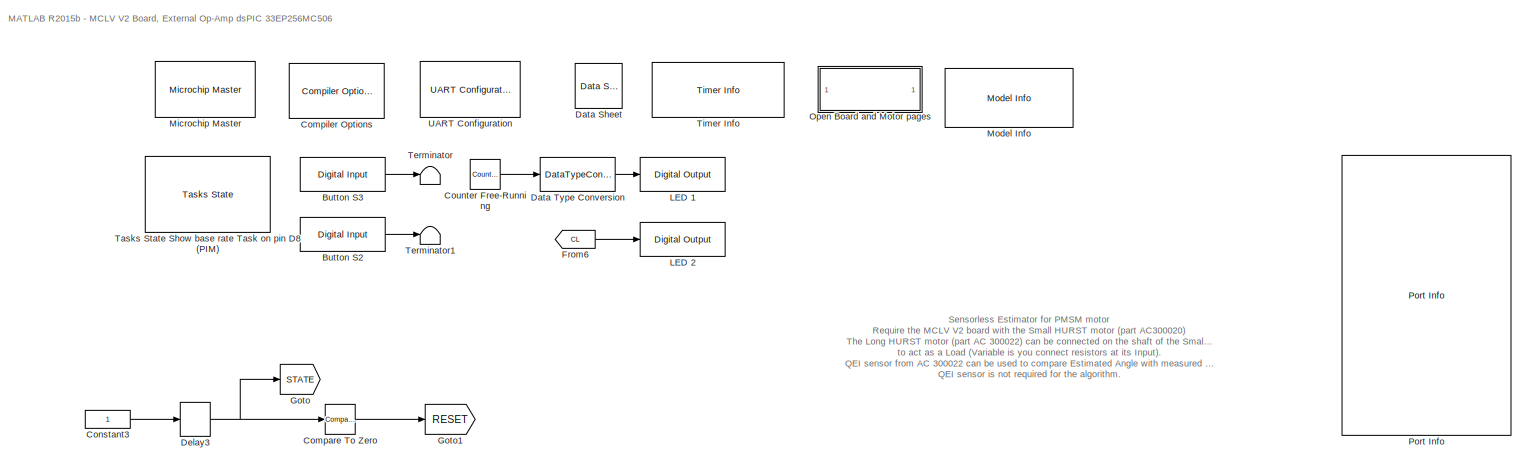
[diagram: root canvas - part 1/3, top center region]
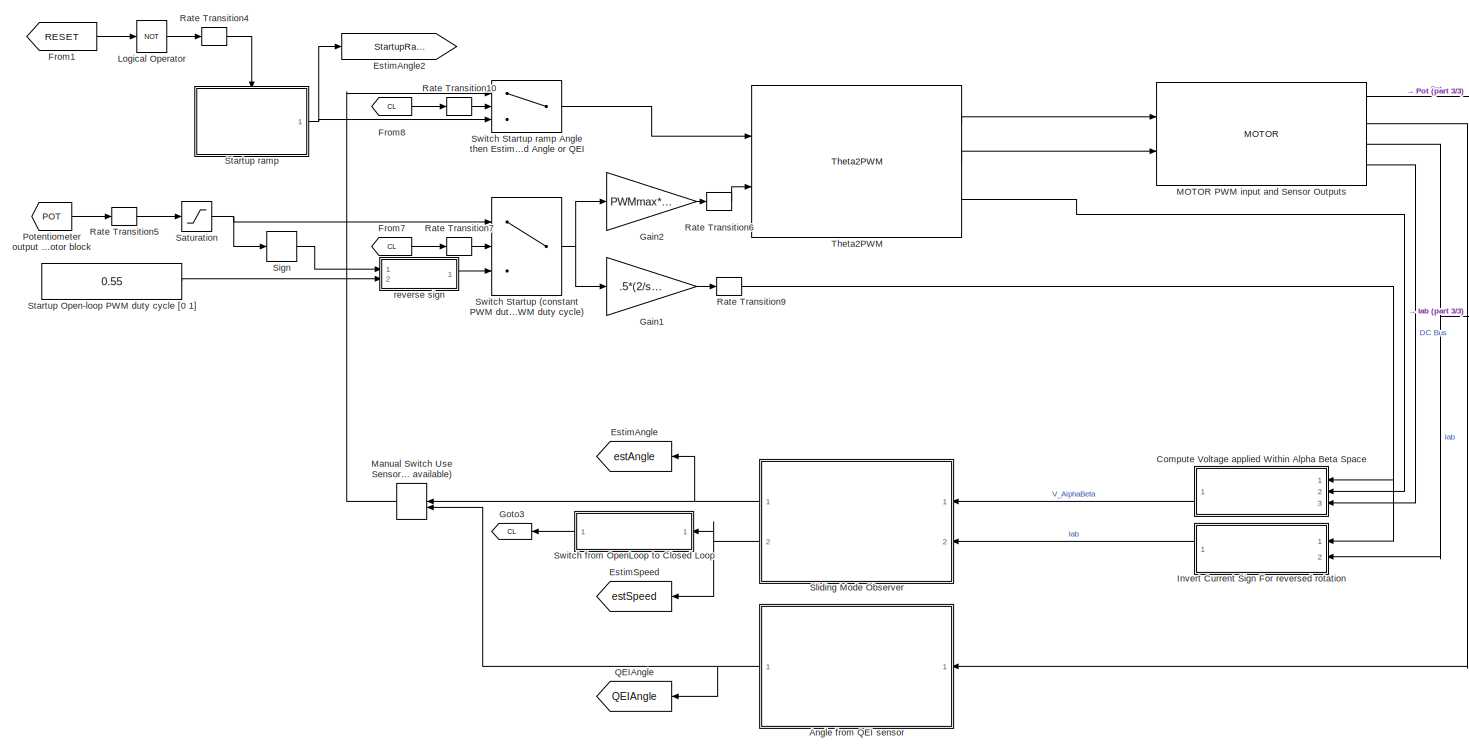
[diagram: root canvas - part 2/3, bottom center region]
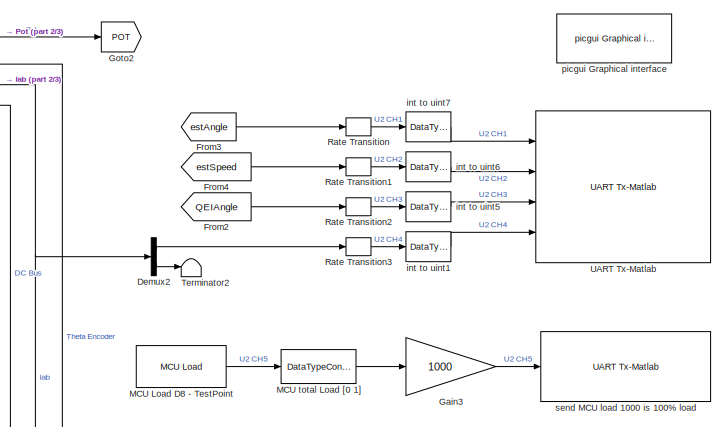
[diagram: root canvas - part 3/3, middle right region]
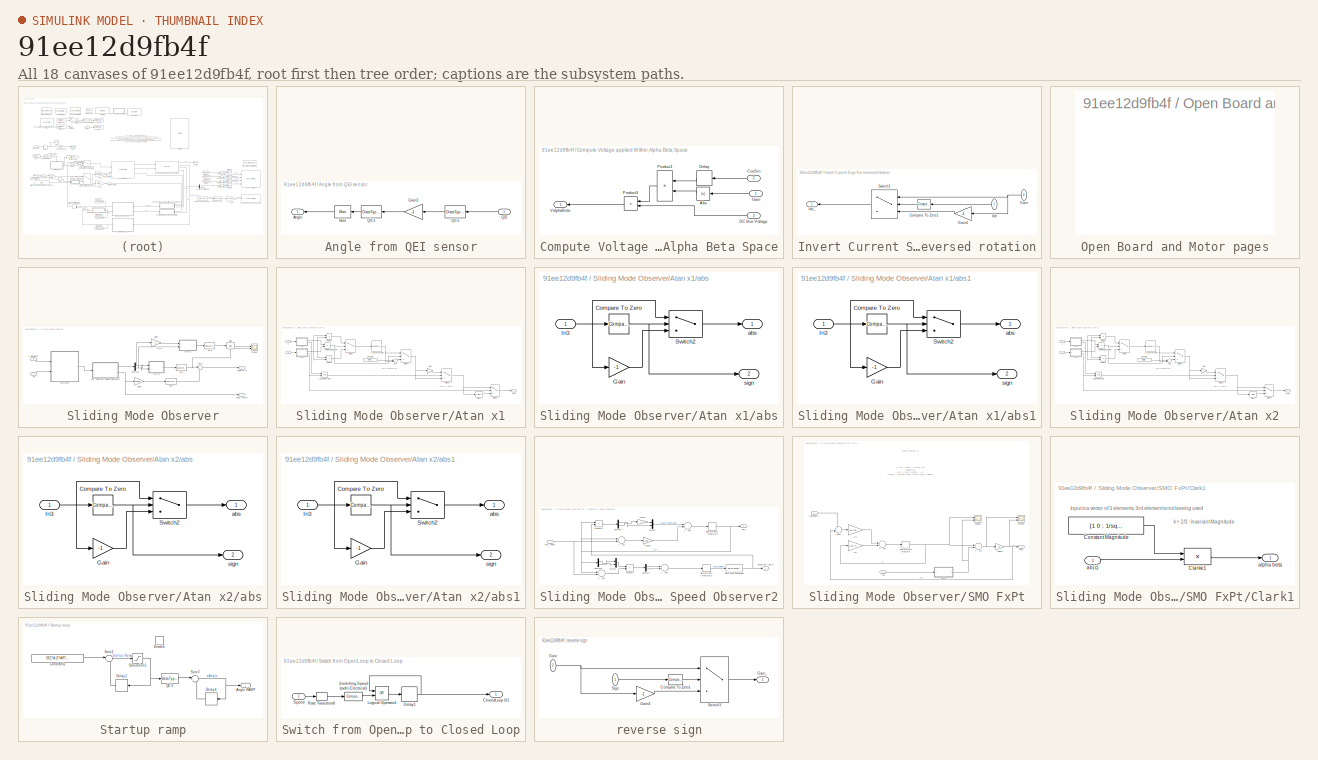
[diagram: thumbnail index - all 18 canvases of the model, root first then tree order]
MODEL slx_91ee12d9fb4f
KIND model
CONFIG AbsTol = auto
CONFIG FixedStep = .00005
CONFIG MaxStep = auto
CONFIG MinStep = auto
CONFIG PreLoadFcn = UserParams;
CONFIG RelTol = 1e-3
CONFIG SampleTimeConstraint = Unconstrained
CONFIG Solver = FixedStepDiscrete
CONFIG SolverMode = Auto
CONFIG SolverName = FixedStepDiscrete
CONFIG StartTime = 0.0
CONFIG StopTime = 10.0
BLOCK [SubSystem] Angle from QEI sensor
  Ports = [1, 1]
  RequestExecContextInheritance = off
  Variant = off
BLOCK [Outport] Angle from QEI sensor/Angle
  IconDisplay = Port number
BLOCK [Bias] Angle from QEI sensor/Bias
  Bias = 0.25
  SaturateOnIntegerOverflow = off
BLOCK [Gain] Angle from QEI sensor/Gain3
  Gain = -1
  ParamDataTypeStr = Inherit: Inherit via internal rule
  SaturateOnIntegerOverflow = off
BLOCK [DataTypeConversion] Angle from QEI sensor/Q0.1
  ConvertRealWorld = Stored Integer (SI)
  OutDataTypeStr = fixdt(0,16,16)
  RndMeth = Floor
  SaturateOnIntegerOverflow = off
BLOCK [DataTypeConversion] Angle from QEI sensor/Q0.2
  ConvertRealWorld = Stored Integer (SI)
  OutDataTypeStr = int16
  RndMeth = Floor
  SaturateOnIntegerOverflow = off
BLOCK [Inport] Angle from QEI sensor/QEI
  IconDisplay = Port number
BLOCK [Reference] Button S2  REF=MCHP_Blockset/Digital IO/Digital Input
  Ports = [0, 1]
  SourceBlock = MCHP_Blockset/Digital IO/Digital Input
  SourceType = Input driver for Digital Input Pins
BLOCK [Reference] Button S3  REF=MCHP_Blockset/Digital IO/Digital Input
  Ports = [0, 1]
  SourceBlock = MCHP_Blockset/Digital IO/Digital Input
  SourceType = Input driver for Digital Input Pins
BLOCK [Reference] Compare To Zero  REF=simulink/Logic and Bit
Operations/Compare
To Zero
  Ports = [1, 1]
  SourceBlock = simulink/Logic and Bit\nOperations/Compare\nTo Zero
  SourceType = Compare To Zero
BLOCK [Reference] Compiler Options  REF=MCHP_Blockset/System Configuration/Compiler Options
  Ports = []
  Priority = 1
  SourceBlock = MCHP_Blockset/System Configuration/Compiler Options
BLOCK [SubSystem] Compute Voltage applied Within Alpha Beta Space
  Ports = [3, 1]
  RequestExecContextInheritance = off
  Variant = off
BLOCK [Abs] Compute Voltage applied Within Alpha Beta Space/Abs
  SaturateOnIntegerOverflow = off
BLOCK [Inport] Compute Voltage applied Within Alpha Beta Space/CosSin
  IconDisplay = Port number
  Port = 2
BLOCK [Inport] Compute Voltage applied Within Alpha Beta Space/DC Bus Voltage
  IconDisplay = Port number
  Port = 3
BLOCK [Delay] Compute Voltage applied Within Alpha Beta Space/Delay
  InitialCondition = 0
  InputPortMap = u0
  Ports = [1, 1]
BLOCK [Inport] Compute Voltage applied Within Alpha Beta Space/Gain
  IconDisplay = Port number
BLOCK [Product] Compute Voltage applied Within Alpha Beta Space/Product1
  InputSameDT = off
  Ports = [2, 1]
  RndMeth = Floor
  SaturateOnIntegerOverflow = off
BLOCK [Product] Compute Voltage applied Within Alpha Beta Space/Product3
  InputSameDT = off
  OutDataTypeStr = fixdt(1,16)
  OutMax = [24]
  OutMin = [-24]
  Ports = [2, 1]
  RndMeth = Floor
  SaturateOnIntegerOverflow = off
BLOCK [Outport] Compute Voltage applied Within Alpha Beta Space/ValphaBeta
  IconDisplay = Port number
BLOCK [Constant] Constant3
  OutDataTypeStr = uint16
  SampleTime = .1
BLOCK [Reference] Counter Free-Running  REF=simulink/Sources/Counter
Free-Running
  Ports = [0, 1]
  SourceBlock = simulink/Sources/Counter\nFree-Running
  SourceType = Counter Free-Running
BLOCK [Reference] Data Sheet  REF=MCHP_Blockset/System Info/Data Sheet
  AttributesFormatString = %<cpy_MCHP_Id>
  Ports = []
  SourceBlock = MCHP_Blockset/System Info/Data Sheet
BLOCK [DataTypeConversion] Data Type Conversion
  OutDataTypeStr = boolean
  RndMeth = Floor
  SaturateOnIntegerOverflow = off
BLOCK [Delay] Delay3
  DelayLength = 1
  InitialCondition = 0
  InputPortMap = u0
  Ports = [1, 1]
BLOCK [Demux] Demux2
  DisplayOption = bar
  Outputs = 2
  Ports = [1, 2]
BLOCK [Goto] EstimAngle
  GotoTag = estAngle
BLOCK [Goto] EstimAngle2
  GotoTag = StartupRamp
BLOCK [Goto] EstimSpeed
  GotoTag = estSpeed
BLOCK [From] From1
  GotoTag = RESET
  TagVisibility = global
BLOCK [From] From2
  GotoTag = QEIAngle
BLOCK [From] From3
  GotoTag = estAngle
BLOCK [From] From4
  GotoTag = estSpeed
BLOCK [From] From6
  GotoTag = CL
  TagVisibility = global
BLOCK [From] From7
  GotoTag = CL
  TagVisibility = global
BLOCK [From] From8
  GotoTag = CL
  TagVisibility = global
BLOCK [Gain] Gain1
  Gain = .5*(2/sqrt(3))
  OutDataTypeStr = fixdt(1,16,15)
  ParamDataTypeStr = Inherit: Inherit via internal rule
  SaturateOnIntegerOverflow = off
BLOCK [Gain] Gain2
  Gain = PWMmax*0.5
  OutDataTypeStr = fixdt(1,16)
  OutMax = PWMmax*0.5
  OutMin = -PWMmax*0.5
  ParamDataTypeStr = Inherit: Inherit via internal rule
  SaturateOnIntegerOverflow = off
BLOCK [Gain] Gain3
  Gain = 1000
  OutDataTypeStr = uint16
  ParamDataTypeStr = Inherit: Inherit via internal rule
  SaturateOnIntegerOverflow = off
BLOCK [Goto] Goto
  GotoTag = STATE
  TagVisibility = global
BLOCK [Goto] Goto1
  GotoTag = RESET
  TagVisibility = global
BLOCK [Goto] Goto2
  GotoTag = POT
  TagVisibility = global
BLOCK [Goto] Goto3
  GotoTag = CL
  TagVisibility = global
BLOCK [SubSystem] Invert Current Sign For reversed rotation
  Ports = [2, 1]
  RequestExecContextInheritance = off
  Variant = off
BLOCK [Reference] Invert Current Sign For reversed rotation/Compare To Zero1  REF=simulink/Logic and Bit
Operations/Compare
To Zero
  Ports = [1, 1]
  SourceBlock = simulink/Logic and Bit\nOperations/Compare\nTo Zero
  SourceType = Compare To Zero
BLOCK [Inport] Invert Current Sign For reversed rotation/Gain
  IconDisplay = Port number
  Port = 2
BLOCK [Gain] Invert Current Sign For reversed rotation/Gain4
  Gain = -1
  ParamDataTypeStr = Inherit: Inherit via internal rule
BLOCK [Inport] Invert Current Sign For reversed rotation/Iab
  IconDisplay = Port number
BLOCK [Outport] Invert Current Sign For reversed rotation/Iab_ 
  IconDisplay = Port number
BLOCK [Switch] Invert Current Sign For reversed rotation/Switch3
  Criteria = u2 ~= 0
  InputSameDT = off
  SaturateOnIntegerOverflow = off
  Threshold = 250
BLOCK [Reference] LED 1  REF=MCHP_Blockset/Digital IO/Digital Output
  Ports = [1]
  SourceBlock = MCHP_Blockset/Digital IO/Digital Output
BLOCK [Reference] LED 2  REF=MCHP_Blockset/Digital IO/Digital Output
  Ports = [1]
  SourceBlock = MCHP_Blockset/Digital IO/Digital Output
BLOCK [Logic] Logical Operator
  AllPortsSameDT = off
  Operator = NOT
  OutDataTypeStr = boolean
  Ports = [1, 1]
BLOCK [Reference] MCU Load D8 - TestPoint  REF=MCHP_Blockset/Profiling/MCU Load
  Ports = [0, 1]
  SourceBlock = MCHP_Blockset/Profiling/MCU Load
  SourceType = MCU Load (Profile execution time)
BLOCK [DataTypeConversion] MCU total Load [0 1]
  ConvertRealWorld = Stored Integer (SI)
  OutDataTypeStr = fixdt(0,16,114.28e-9/.007,0)
  RndMeth = Floor
  SaturateOnIntegerOverflow = off
BLOCK [Reference] MOTOR PWM input and Sensor Outputs  REF=Lib_MCHP_BLKDEMO_Motor/MOTOR
  Ports = [2, 4]
  SourceBlock = Lib_MCHP_BLKDEMO_Motor/MOTOR
  SourceType = SubSystem
BLOCK [ManualSwitch] Manual Switch Use Sensorless Estimation or QEI (if available)
BLOCK [Reference] Microchip Master  REF=MCHP_Blockset/System Configuration/Microchip Master
  Ports = []
  Priority = 1
  SourceBlock = MCHP_Blockset/System Configuration/Microchip Master
BLOCK [Reference] Model Info  REF=simulink/Model-Wide
Utilities/Model Info
  Ports = []
  SourceBlock = simulink/Model-Wide\nUtilities/Model Info
  SourceType = CMBlock
BLOCK [SubSystem] Open Board and Motor pages
  OpenFcn = web('www.microchip.com/DevelopmentTools/ProductDetails.aspx?PartNO=DM330021-2','-browser');\npause(1);\nweb('http://www.microchipdirect.com/productsearch.aspx?keywords=AC300020','-browser');\npause(1);\nweb('www.microchipdirect.com/ProductSearch.aspx?keywords=AC300022','-browser');
  Ports = []
  RequestExecContextInheritance = off
  Variant = off
BLOCK [Reference] Port Info  REF=MCHP_Blockset/System Info/Port Info
  Ports = []
  SourceBlock = MCHP_Blockset/System Info/Port Info
BLOCK [From] Potentiometer output From the Motor block
  GotoTag = POT
  TagVisibility = global
BLOCK [Goto] QEIAngle
  GotoTag = QEIAngle
BLOCK [RateTransition] Rate Transition
BLOCK [RateTransition] Rate Transition1
BLOCK [RateTransition] Rate Transition10
BLOCK [RateTransition] Rate Transition2
BLOCK [RateTransition] Rate Transition3
BLOCK [RateTransition] Rate Transition4
BLOCK [RateTransition] Rate Transition5
  OutPortSampleTime = .1
BLOCK [RateTransition] Rate Transition6
BLOCK [RateTransition] Rate Transition7
BLOCK [RateTransition] Rate Transition9
BLOCK [Saturate] Saturation
  InputPortMap = u0
  LowerLimit = 0
  Ports = [1, 1]
  UpperLimit = 1
BLOCK [Signum] Sign
BLOCK [SubSystem] Sliding Mode Observer
  Ports = [2, 2]
  RequestExecContextInheritance = off
  Variant = off
BLOCK [Outport] Sliding Mode Observer/Angle [0 1]
  IconDisplay = Port number
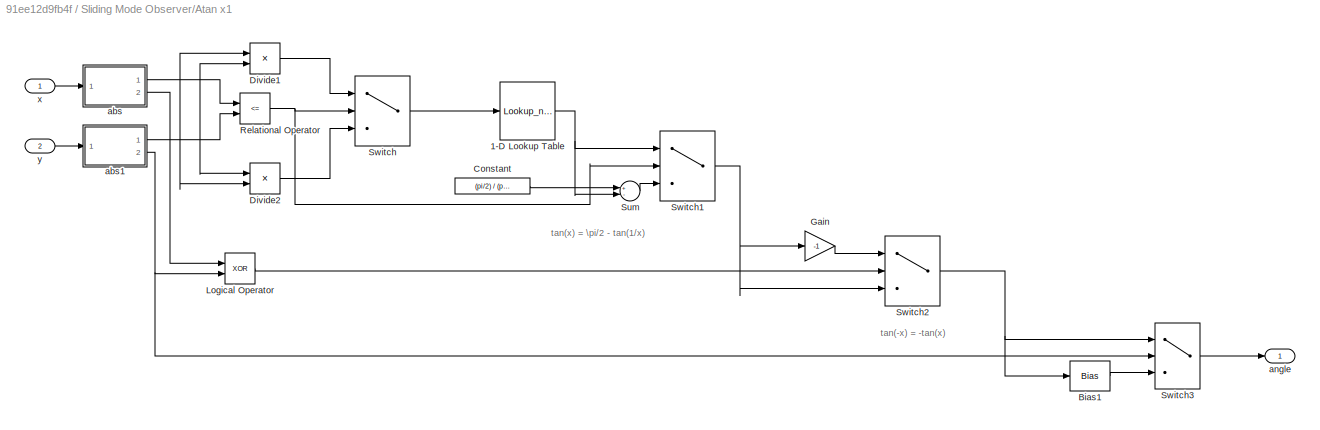
BLOCK [SubSystem] Sliding Mode Observer/Atan x1
  AncestorBlock = Lib_MCHP_BLKDEMO_Motor/Atan x2
  Ports = [2, 1]
  RequestExecContextInheritance = off
  Variant = off
BLOCK [Lookup_n-D] Sliding Mode Observer/Atan x1/1-D Lookup Table
  BeginIndexSearchUsingPreviousIndexResult = on
  BreakpointsForDimension1 = [0:2^-8:1]
  BreakpointsForDimension1FirstPoint = 0
  BreakpointsForDimension1Spacing = 2^-8
  BreakpointsSpecification = Even spacing
  ExtrapMethod = Clip
  IndexSearchMethod = Evenly spaced points
  InterpMethod = Flat
  LockScale = on
  NumberOfTableDimensions = 1
  OutDataTypeStr = fixdt(1,16,15)
  Ports = [1, 1]
  RemoveProtectionInput = on
  RndMeth = Simplest
  Table = atan([0:2^-8:1])/(pi)
  TableDataTypeStr = fixdt(1,16,15)
  UseLastTableValue = on
BLOCK [Bias] Sliding Mode Observer/Atan x1/Bias1
  Bias = 1
  SaturateOnIntegerOverflow = off
BLOCK [Constant] Sliding Mode Observer/Atan x1/Constant
  OutDataTypeStr = Inherit: Inherit via back propagation
  Value = (pi/2) / (pi)
BLOCK [Product] Sliding Mode Observer/Atan x1/Divide1
  InputSameDT = off
  Inputs = */
  OutDataTypeStr = fixdt(0,16,15)
  Ports = [2, 1]
  RndMeth = Floor
  SaturateOnIntegerOverflow = off
BLOCK [Product] Sliding Mode Observer/Atan x1/Divide2
  InputSameDT = off
  Inputs = */
  OutDataTypeStr = fixdt(0,16,15)
  Ports = [2, 1]
  RndMeth = Floor
  SaturateOnIntegerOverflow = off
BLOCK [Gain] Sliding Mode Observer/Atan x1/Gain
  Gain = -1
  ParamDataTypeStr = Inherit: Inherit via internal rule
  SaturateOnIntegerOverflow = off
BLOCK [Logic] Sliding Mode Observer/Atan x1/Logical Operator
  AllPortsSameDT = off
  Operator = XOR
  OutDataTypeStr = boolean
  Ports = [2, 1]
BLOCK [RelationalOperator] Sliding Mode Observer/Atan x1/Relational Operator
  InputSameDT = off
  Operator = <=
  OutDataTypeStr = boolean
  Ports = [2, 1]
BLOCK [Sum] Sliding Mode Observer/Atan x1/Sum
  InputSameDT = off
  Inputs = +-
  OutDataTypeStr = Inherit: Inherit via internal rule
  Ports = [2, 1]
  SaturateOnIntegerOverflow = off
BLOCK [Switch] Sliding Mode Observer/Atan x1/Switch
  Criteria = u2 ~= 0
  InputSameDT = off
  SaturateOnIntegerOverflow = off
BLOCK [Switch] Sliding Mode Observer/Atan x1/Switch1
  Criteria = u2 ~= 0
  InputSameDT = off
  SaturateOnIntegerOverflow = off
BLOCK [Switch] Sliding Mode Observer/Atan x1/Switch2
  Criteria = u2 ~= 0
  InputSameDT = off
  SaturateOnIntegerOverflow = off
BLOCK [Switch] Sliding Mode Observer/Atan x1/Switch3
  Criteria = u2 ~= 0
  InputSameDT = off
  SaturateOnIntegerOverflow = off
BLOCK [SubSystem] Sliding Mode Observer/Atan x1/abs
  Ports = [1, 2]
  RequestExecContextInheritance = off
  Variant = off
BLOCK [Reference] Sliding Mode Observer/Atan x1/abs/Compare To Zero  REF=simulink/Logic and Bit
Operations/Compare
To Zero
  Ports = [1, 1]
  SourceBlock = simulink/Logic and Bit\nOperations/Compare\nTo Zero
  SourceType = Compare To Zero
BLOCK [Gain] Sliding Mode Observer/Atan x1/abs/Gain
  Gain = -1
  ParamDataTypeStr = Inherit: Inherit via internal rule
  SaturateOnIntegerOverflow = off
BLOCK [Inport] Sliding Mode Observer/Atan x1/abs/In3
  IconDisplay = Port number
BLOCK [Switch] Sliding Mode Observer/Atan x1/abs/Switch2
  Criteria = u2 ~= 0
  InputSameDT = off
  SaturateOnIntegerOverflow = off
BLOCK [Outport] Sliding Mode Observer/Atan x1/abs/abs
  IconDisplay = Port number
BLOCK [Outport] Sliding Mode Observer/Atan x1/abs/sign
  IconDisplay = Port number
  Port = 2
BLOCK [SubSystem] Sliding Mode Observer/Atan x1/abs1
  Ports = [1, 2]
  RequestExecContextInheritance = off
  Variant = off
BLOCK [Reference] Sliding Mode Observer/Atan x1/abs1/Compare To Zero  REF=simulink/Logic and Bit
Operations/Compare
To Zero
  Ports = [1, 1]
  SourceBlock = simulink/Logic and Bit\nOperations/Compare\nTo Zero
  SourceType = Compare To Zero
BLOCK [Gain] Sliding Mode Observer/Atan x1/abs1/Gain
  Gain = -1
  ParamDataTypeStr = Inherit: Inherit via internal rule
  SaturateOnIntegerOverflow = off
BLOCK [Inport] Sliding Mode Observer/Atan x1/abs1/In3
  IconDisplay = Port number
BLOCK [Switch] Sliding Mode Observer/Atan x1/abs1/Switch2
  Criteria = u2 ~= 0
  InputSameDT = off
  SaturateOnIntegerOverflow = off
BLOCK [Outport] Sliding Mode Observer/Atan x1/abs1/abs
  IconDisplay = Port number
BLOCK [Outport] Sliding Mode Observer/Atan x1/abs1/sign
  IconDisplay = Port number
  Port = 2
BLOCK [Outport] Sliding Mode Observer/Atan x1/angle
  IconDisplay = Port number
BLOCK [Inport] Sliding Mode Observer/Atan x1/x
  IconDisplay = Port number
BLOCK [Inport] Sliding Mode Observer/Atan x1/y
  IconDisplay = Port number
  Port = 2
BLOCK [SubSystem] Sliding Mode Observer/Atan x2
  AncestorBlock = Lib_MCHP_BLKDEMO_Motor/Atan x2
  Ports = [2, 1]
  RequestExecContextInheritance = off
  Variant = off
BLOCK [Lookup_n-D] Sliding Mode Observer/Atan x2/1-D Lookup Table
  BeginIndexSearchUsingPreviousIndexResult = on
  BreakpointsForDimension1 = [0:2^-8:1]
  BreakpointsForDimension1FirstPoint = 0
  BreakpointsForDimension1Spacing = 2^-8
  BreakpointsSpecification = Even spacing
  ExtrapMethod = Clip
  IndexSearchMethod = Evenly spaced points
  InterpMethod = Flat
  LockScale = on
  NumberOfTableDimensions = 1
  OutDataTypeStr = fixdt(1,16,15)
  Ports = [1, 1]
  RemoveProtectionInput = on
  RndMeth = Simplest
  Table = atan([0:2^-8:1])/(pi)
  TableDataTypeStr = fixdt(1,16,15)
  UseLastTableValue = on
BLOCK [Bias] Sliding Mode Observer/Atan x2/Bias1
  Bias = 1
  SaturateOnIntegerOverflow = off
BLOCK [Constant] Sliding Mode Observer/Atan x2/Constant
  OutDataTypeStr = Inherit: Inherit via back propagation
  Value = (pi/2) / (pi)
BLOCK [Product] Sliding Mode Observer/Atan x2/Divide1
  InputSameDT = off
  Inputs = */
  OutDataTypeStr = fixdt(0,16,15)
  Ports = [2, 1]
  RndMeth = Floor
  SaturateOnIntegerOverflow = off
BLOCK [Product] Sliding Mode Observer/Atan x2/Divide2
  InputSameDT = off
  Inputs = */
  OutDataTypeStr = fixdt(0,16,15)
  Ports = [2, 1]
  RndMeth = Floor
  SaturateOnIntegerOverflow = off
BLOCK [Gain] Sliding Mode Observer/Atan x2/Gain
  Gain = -1
  ParamDataTypeStr = Inherit: Inherit via internal rule
  SaturateOnIntegerOverflow = off
BLOCK [Logic] Sliding Mode Observer/Atan x2/Logical Operator
  AllPortsSameDT = off
  Operator = XOR
  OutDataTypeStr = boolean
  Ports = [2, 1]
BLOCK [RelationalOperator] Sliding Mode Observer/Atan x2/Relational Operator
  InputSameDT = off
  Operator = <=
  OutDataTypeStr = boolean
  Ports = [2, 1]
BLOCK [Sum] Sliding Mode Observer/Atan x2/Sum
  InputSameDT = off
  Inputs = +-
  OutDataTypeStr = Inherit: Inherit via internal rule
  Ports = [2, 1]
  SaturateOnIntegerOverflow = off
BLOCK [Switch] Sliding Mode Observer/Atan x2/Switch
  Criteria = u2 ~= 0
  InputSameDT = off
  SaturateOnIntegerOverflow = off
BLOCK [Switch] Sliding Mode Observer/Atan x2/Switch1
  Criteria = u2 ~= 0
  InputSameDT = off
  SaturateOnIntegerOverflow = off
BLOCK [Switch] Sliding Mode Observer/Atan x2/Switch2
  Criteria = u2 ~= 0
  InputSameDT = off
  SaturateOnIntegerOverflow = off
BLOCK [Switch] Sliding Mode Observer/Atan x2/Switch3
  Criteria = u2 ~= 0
  InputSameDT = off
  SaturateOnIntegerOverflow = off
BLOCK [SubSystem] Sliding Mode Observer/Atan x2/abs
  Ports = [1, 2]
  RequestExecContextInheritance = off
  Variant = off
BLOCK [Reference] Sliding Mode Observer/Atan x2/abs/Compare To Zero  REF=simulink/Logic and Bit
Operations/Compare
To Zero
  Ports = [1, 1]
  SourceBlock = simulink/Logic and Bit\nOperations/Compare\nTo Zero
  SourceType = Compare To Zero
BLOCK [Gain] Sliding Mode Observer/Atan x2/abs/Gain
  Gain = -1
  ParamDataTypeStr = Inherit: Inherit via internal rule
  SaturateOnIntegerOverflow = off
BLOCK [Inport] Sliding Mode Observer/Atan x2/abs/In3
  IconDisplay = Port number
BLOCK [Switch] Sliding Mode Observer/Atan x2/abs/Switch2
  Criteria = u2 ~= 0
  InputSameDT = off
  SaturateOnIntegerOverflow = off
BLOCK [Outport] Sliding Mode Observer/Atan x2/abs/abs
  IconDisplay = Port number
BLOCK [Outport] Sliding Mode Observer/Atan x2/abs/sign
  IconDisplay = Port number
  Port = 2
BLOCK [SubSystem] Sliding Mode Observer/Atan x2/abs1
  Ports = [1, 2]
  RequestExecContextInheritance = off
  Variant = off
BLOCK [Reference] Sliding Mode Observer/Atan x2/abs1/Compare To Zero  REF=simulink/Logic and Bit
Operations/Compare
To Zero
  Ports = [1, 1]
  SourceBlock = simulink/Logic and Bit\nOperations/Compare\nTo Zero
  SourceType = Compare To Zero
BLOCK [Gain] Sliding Mode Observer/Atan x2/abs1/Gain
  Gain = -1
  ParamDataTypeStr = Inherit: Inherit via internal rule
  SaturateOnIntegerOverflow = off
BLOCK [Inport] Sliding Mode Observer/Atan x2/abs1/In3
  IconDisplay = Port number
BLOCK [Switch] Sliding Mode Observer/Atan x2/abs1/Switch2
  Criteria = u2 ~= 0
  InputSameDT = off
  SaturateOnIntegerOverflow = off
BLOCK [Outport] Sliding Mode Observer/Atan x2/abs1/abs
  IconDisplay = Port number
BLOCK [Outport] Sliding Mode Observer/Atan x2/abs1/sign
  IconDisplay = Port number
  Port = 2
BLOCK [Outport] Sliding Mode Observer/Atan x2/angle
  IconDisplay = Port number
BLOCK [Inport] Sliding Mode Observer/Atan x2/x
  IconDisplay = Port number
BLOCK [Inport] Sliding Mode Observer/Atan x2/y
  IconDisplay = Port number
  Port = 2
BLOCK [Bias] Sliding Mode Observer/Bias
  Bias = 0.25
  SaturateOnIntegerOverflow = off
BLOCK [Demux] Sliding Mode Observer/Demux2
  DisplayOption = bar
  Outputs = 2
  Ports = [1, 2]
BLOCK [Gain] Sliding Mode Observer/Gain1
  Gain = -1
  ParamDataTypeStr = Inherit: Inherit via internal rule
  RndMeth = Simplest
  SaturateOnIntegerOverflow = off
BLOCK [Gain] Sliding Mode Observer/Gain2
  Gain = .00005*inv(2*pi)*5
  OutDataTypeStr = fixdt(1,16,15)
  ParamDataTypeStr = Inherit: Inherit via internal rule
  RndMeth = Simplest
  SaturateOnIntegerOverflow = off
BLOCK [Inport] Sliding Mode Observer/Iab
  IconDisplay = Port number
  Port = 2
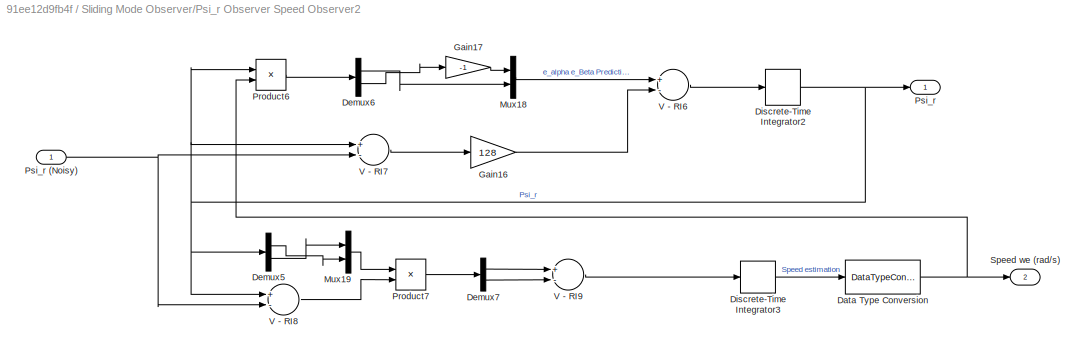
BLOCK [SubSystem] Sliding Mode Observer/Psi_r Observer Speed Observer2
  Ports = [1, 2]
  RequestExecContextInheritance = off
  Variant = off
BLOCK [DataTypeConversion] Sliding Mode Observer/Psi_r Observer Speed Observer2/Data Type Conversion
  OutDataTypeStr = fixdt(1,16)
  OutMax = +5300 * 5 * (2*pi) / 60
  OutMin = -5300 * 5 * (2*pi) / 60
  RndMeth = Floor
  SaturateOnIntegerOverflow = off
BLOCK [Demux] Sliding Mode Observer/Psi_r Observer Speed Observer2/Demux5
  DisplayOption = bar
  Outputs = 2
  Ports = [1, 2]
BLOCK [Demux] Sliding Mode Observer/Psi_r Observer Speed Observer2/Demux6
  DisplayOption = bar
  Outputs = 2
  Ports = [1, 2]
BLOCK [Demux] Sliding Mode Observer/Psi_r Observer Speed Observer2/Demux7
  DisplayOption = bar
  Outputs = 2
  Ports = [1, 2]
BLOCK [DiscreteIntegrator] Sliding Mode Observer/Psi_r Observer Speed Observer2/Discrete-Time Integrator2
  ICPrevOutput = DiscIntNeverNeededParam
  ICPrevScaledInput = DiscIntNeverNeededParam
  LowerSaturationLimit = -15
  OutDataTypeStr = fixdt(1,16)
  OutMax = 24
  OutMin = -24
  Ports = [1, 1]
  SampleTime = -1
  UpperSaturationLimit = 15
  gainval = 1
BLOCK [DiscreteIntegrator] Sliding Mode Observer/Psi_r Observer Speed Observer2/Discrete-Time Integrator3
  ICPrevOutput = DiscIntNeverNeededParam
  ICPrevScaledInput = DiscIntNeverNeededParam
  OutDataTypeStr = fixdt(1,32)
  OutMax = 5300 * 5 * (2*pi) / 60
  OutMin = -5300 * 5 * (2*pi) / 60
  Ports = [1, 1]
  RndMeth = Simplest
  SampleTime = -1
  StateIdentifier = Speed
  gainval = 1000
BLOCK [Gain] Sliding Mode Observer/Psi_r Observer Speed Observer2/Gain16
  Gain = 128
  OutDataTypeStr = fixdt(1,16)
  OutMax = [24*2*128]
  OutMin = [-24*2*128]
  ParamDataTypeStr = Inherit: Inherit via internal rule
  SaturateOnIntegerOverflow = off
BLOCK [Gain] Sliding Mode Observer/Psi_r Observer Speed Observer2/Gain17
  Gain = -1
  ParamDataTypeStr = Inherit: Inherit via internal rule
  SaturateOnIntegerOverflow = off
BLOCK [Mux] Sliding Mode Observer/Psi_r Observer Speed Observer2/Mux18
  DisplayOption = bar
  Inputs = 2
  Ports = [2, 1]
BLOCK [Mux] Sliding Mode Observer/Psi_r Observer Speed Observer2/Mux19
  DisplayOption = bar
  Inputs = 2
  Ports = [2, 1]
BLOCK [Product] Sliding Mode Observer/Psi_r Observer Speed Observer2/Product6
  InputSameDT = off
  OutDataTypeStr = fixdt(1,32,12)
  Ports = [2, 1]
BLOCK [Product] Sliding Mode Observer/Psi_r Observer Speed Observer2/Product7
  InputSameDT = off
  OutDataTypeStr = fixdt(1,16)
  OutMax = 24*24
  OutMin = [-24*24]
  Ports = [2, 1]
  RndMeth = Simplest
BLOCK [Outport] Sliding Mode Observer/Psi_r Observer Speed Observer2/Psi_r
  IconDisplay = Port number
BLOCK [Inport] Sliding Mode Observer/Psi_r Observer Speed Observer2/Psi_r (Noisy)
  IconDisplay = Port number
BLOCK [Outport] Sliding Mode Observer/Psi_r Observer Speed Observer2/Speed we (rad//s)
  IconDisplay = Port number
  Port = 2
BLOCK [Sum] Sliding Mode Observer/Psi_r Observer Speed Observer2/V - RI6
  AccumDataTypeStr = Inherit: Same as first input
  InputSameDT = off
  Inputs = +-
  OutDataTypeStr = Inherit: Same as accumulator
  Ports = [2, 1]
  SaturateOnIntegerOverflow = off
BLOCK [Sum] Sliding Mode Observer/Psi_r Observer Speed Observer2/V - RI7
  InputSameDT = off
  Inputs = +-
  OutDataTypeStr = fixdt(1,16)
  OutMax = [24*2]
  OutMin = [-24*2]
  Ports = [2, 1]
  SaturateOnIntegerOverflow = off
BLOCK [Sum] Sliding Mode Observer/Psi_r Observer Speed Observer2/V - RI8
  AccumDataTypeStr = Inherit: Same as first input
  InputSameDT = off
  Inputs = +-
  OutDataTypeStr = Inherit: Same as accumulator
  Ports = [2, 1]
  RndMeth = Simplest
BLOCK [Sum] Sliding Mode Observer/Psi_r Observer Speed Observer2/V - RI9
  Inputs = +-
  OutDataTypeStr = fixdt(1,16)
  OutMax = [-24*24*2]
  OutMin = [-24*24*2]
  Ports = [2, 1]
  RndMeth = Simplest
BLOCK [DataTypeConversion] Sliding Mode Observer/Q0.1
  ConvertRealWorld = Stored Integer (SI)
  OutDataTypeStr = fixdt(0,16,16)
  RndMeth = Simplest
  SaturateOnIntegerOverflow = off
BLOCK [DataTypeConversion] Sliding Mode Observer/Q0.2
  OutDataTypeStr = fixdt(0,16,16)
  RndMeth = Simplest
  SaturateOnIntegerOverflow = off
BLOCK [DataTypeConversion] Sliding Mode Observer/Q0.3
  ConvertRealWorld = Stored Integer (SI)
  OutDataTypeStr = fixdt(0,16,16)
  RndMeth = Simplest
  SaturateOnIntegerOverflow = off
BLOCK [SubSystem] Sliding Mode Observer/SMO FxPt
  Ports = [2, 1]
  RequestExecContextInheritance = off
  Variant = off
BLOCK [Gain] Sliding Mode Observer/SMO FxPt/1//L
  Gain = inv(.002)
  OutDataTypeStr = fixdt(1,16)
  OutMax = [24] * inv(.002) *2
  OutMin = [-24] * inv(.002) *2
  ParamDataTypeStr = Inherit: Inherit via internal rule
  SaturateOnIntegerOverflow = off
BLOCK [SubSystem] Sliding Mode Observer/SMO FxPt/Clark1
  Ports = [1, 1]
  RequestExecContextInheritance = off
  Variant = off
BLOCK [Product] Sliding Mode Observer/SMO FxPt/Clark1/Clarke1
  InputSameDT = off
  Multiplication = Matrix(*)
  OutDataTypeStr = fixdt(1,16)
  OutMax = [4.4]
  OutMin = [-4.4]
  Ports = [2, 1]
BLOCK [Constant] Sliding Mode Observer/SMO FxPt/Clark1/Constant Magnitude
  OutDataTypeStr = fixdt(1,16)
  Value = [1 0 ; 1/sqrt(3) 2/sqrt(3) ];
BLOCK [Inport] Sliding Mode Observer/SMO FxPt/Clark1/ab(c)
  IconDisplay = Port number
BLOCK [Outport] Sliding Mode Observer/SMO FxPt/Clark1/alpha beta
  IconDisplay = Port number
BLOCK [DiscreteIntegrator] Sliding Mode Observer/SMO FxPt/Discrete-Time Integrator
  ICPrevOutput = DiscIntNeverNeededParam
  ICPrevScaledInput = DiscIntNeverNeededParam
  OutDataTypeStr = fixdt(1,16)
  OutMax = [4.4]
  OutMin = [-4.4]
  Ports = [1, 1]
  SampleTime = -1
BLOCK [Gain] Sliding Mode Observer/SMO FxPt/Gain15
  Gain = 75
  OutDataTypeStr = fixdt(1,16)
  OutMax = [24]
  OutMin = [-24]
  ParamDataTypeStr = Inherit: Inherit via internal rule
BLOCK [Inport] Sliding Mode Observer/SMO FxPt/Iab
  IconDisplay = Port number
  Port = 2
BLOCK [Outport] Sliding Mode Observer/SMO FxPt/Psi_r
  IconDisplay = Port number
BLOCK [Gain] Sliding Mode Observer/SMO FxPt/R//L
  Gain = 3.15/.002
  OutDataTypeStr = fixdt(1,16)
  OutMax = [4.4] * 3.15/.002
  OutMin = [-4.4] * 3.15/.002
  ParamDataTypeStr = Inherit: Inherit via internal rule
  SaturateOnIntegerOverflow = off
BLOCK [Scope] Sliding Mode Observer/SMO FxPt/Scope1
  NumInputPorts = 2
  Ports = [2]
  ScopeSpecificationString = Simulink.scopes.TimeScopeBlockCfg('CurrentConfiguration', extmgr.ConfigurationSet(extmgr.Configuration('Core','General UI',true),extmgr.Configuration('Core','Source UI',true),extmgr.Configuration('Sources','WiredSimulink',true,'DataLoggingVariableName','ScopeData1'),extmgr.Configuration('Visuals','Time Domain',true,'SerializedDisplays',{struct('MinYLimReal','-39.99988','MaxYLimReal','39.9989','YLa...<+1514ch>
BLOCK [Scope] Sliding Mode Observer/SMO FxPt/Scope7
  NumInputPorts = 2
  Ports = [2]
  ScopeSpecificationString = Simulink.scopes.TimeScopeBlockCfg('CurrentConfiguration', extmgr.ConfigurationSet(extmgr.Configuration('Core','General UI',true),extmgr.Configuration('Core','Source UI',true),extmgr.Configuration('Sources','WiredSimulink',true,'DataLoggingVariableName','ScopeData6','DataLoggingSaveFormat','StructureWithTime','DataLoggingDecimation','1','DataLoggingDecimateData',true),extmgr.Configuration('Visuals'...<+1691ch>
BLOCK [Sum] Sliding Mode Observer/SMO FxPt/V - RI3
  AccumDataTypeStr = Inherit: Same as first input
  InputSameDT = off
  Inputs = +-
  OutDataTypeStr = Inherit: Same as accumulator
  Ports = [2, 1]
  SaturateOnIntegerOverflow = off
BLOCK [Sum] Sliding Mode Observer/SMO FxPt/V - RI4
  AccumDataTypeStr = Inherit: Same as first input
  InputSameDT = off
  Inputs = +-
  OutDataTypeStr = Inherit: Same as accumulator
  Ports = [2, 1]
  SaturateOnIntegerOverflow = off
BLOCK [Inport] Sliding Mode Observer/SMO FxPt/VAlphaBeta
  IconDisplay = Port number
BLOCK [Sum] Sliding Mode Observer/SMO FxPt/add4
  AccumDataTypeStr = Inherit: Same as first input
  IconShape = round
  InputSameDT = off
  Inputs = +-|
  OutDataTypeStr = Inherit: Same as accumulator
  Ports = [2, 1]
BLOCK [Scope] Sliding Mode Observer/Scope
  NumInputPorts = 2
  Ports = [2]
  ScopeSpecificationString = Simulink.scopes.TimeScopeBlockCfg('CurrentConfiguration', extmgr.ConfigurationSet(extmgr.Configuration('Core','General UI',true),extmgr.Configuration('Core','Source UI',true),extmgr.Configuration('Sources','WiredSimulink',true,'DataLoggingVariableName','ScopeData1'),extmgr.Configuration('Visuals','Time Domain',true,'SerializedDisplays',{struct('MinYLimReal','-0.125','MaxYLimReal','1.12498','YLabel...<+2015ch>
BLOCK [Outport] Sliding Mode Observer/Sped (rad//s)
  IconDisplay = Port number
  Port = 2
BLOCK [Sum] Sliding Mode Observer/Sum1
  AccumDataTypeStr = Inherit: Same as first input
  IconShape = round
  InputSameDT = off
  Inputs = |++
  OutDataTypeStr = Inherit: Same as accumulator
  Ports = [2, 1]
  RndMeth = Simplest
  SaturateOnIntegerOverflow = off
BLOCK [Inport] Sliding Mode Observer/V AlphaBeta
  IconDisplay = Port number
BLOCK [Constant] Startup Open-loop PWM duty cycle [0 1]
  OutDataTypeStr = Inherit: Inherit via back propagation
  Value = 0.55
BLOCK [SubSystem] Startup ramp
  Ports = [0, 1, 1]
  RequestExecContextInheritance = off
  Variant = off
BLOCK [Outport] Startup ramp/Angle RAMP
  IconDisplay = Port number
BLOCK [Constant] Startup ramp/Constant2
  OutDataTypeStr = fixdt(0,16,32)
  SampleTime = .00005
  Value = DELTA_STARTUP_RAMP*2^-32
BLOCK [Delay] Startup ramp/Delay1
  DelayLength = 1
  InitialCondition = 0
  InputPortMap = u0
  Ports = [1, 1]
BLOCK [Delay] Startup ramp/Delay4
  DelayLength = 1
  InitialCondition = 0
  InputPortMap = u0
  Ports = [1, 1]
BLOCK [EnablePort] Startup ramp/Enable
  Ports = []
  StatesWhenEnabling = reset
BLOCK [DataTypeConversion] Startup ramp/Q0.3
  OutDataTypeStr = fixdt(0,16,16)
  RndMeth = Floor
  SaturateOnIntegerOverflow = off
BLOCK [Saturate] Startup ramp/Saturation1
  InputPortMap = u0
  LowerLimit = 0
  Ports = [1, 1]
  UpperLimit = DELTA_STARTUP_RAMP*2^-32*10/TS
BLOCK [Sum] Startup ramp/Sum2
  AccumDataTypeStr = fixdt(0,32,32)
  IconShape = round
  InputSameDT = off
  Inputs = |++
  OutDataTypeStr = Inherit: Same as accumulator
  Ports = [2, 1]
  RndMeth = Simplest
  SaturateOnIntegerOverflow = off
BLOCK [Sum] Startup ramp/Sum3
  AccumDataTypeStr = fixdt(0,16,16)
  IconShape = round
  InputSameDT = off
  Inputs = |++
  OutDataTypeStr = Inherit: Same as accumulator
  Ports = [2, 1]
  RndMeth = Simplest
  SaturateOnIntegerOverflow = off
BLOCK [Switch] Switch Startup (constant PWM duty cycle) then Closed Loop (Pot drive PWM duty cycle)
  Criteria = u2 ~= 0
  InputSameDT = off
  SaturateOnIntegerOverflow = off
  Threshold = 250
BLOCK [Switch] Switch Startup ramp Angle then Estimated Angle or QEI
  Criteria = u2 ~= 0
  InputSameDT = off
  SaturateOnIntegerOverflow = off
  Threshold = 250
BLOCK [SubSystem] Switch from OpenLoop to Closed Loop
  Ports = [1, 1]
  RequestExecContextInheritance = off
  Variant = off
BLOCK [Outport] Switch from OpenLoop to Closed Loop/ClosedLoop 0//1
  IconDisplay = Port number
BLOCK [Delay] Switch from OpenLoop to Closed Loop/Delay1
  DelayLength = 1
  InitialCondition = [0]
  InputPortMap = u0
  Ports = [1, 1]
BLOCK [Logic] Switch from OpenLoop to Closed Loop/Logical Operator1
  AllPortsSameDT = off
  Operator = OR
  OutDataTypeStr = boolean
  Ports = [2, 1]
BLOCK [RateTransition] Switch from OpenLoop to Closed Loop/Rate Transition8
  OutPortSampleTime = .01
BLOCK [Inport] Switch from OpenLoop to Closed Loop/Speed
  IconDisplay = Port number
BLOCK [Reference] Switch from OpenLoop to Closed Loop/Switching Speed (rad//s Electrical)  REF=simulink/Logic and Bit
Operations/Compare
To Constant
  Ports = [1, 1]
  SourceBlock = simulink/Logic and Bit\nOperations/Compare\nTo Constant
  SourceType = Compare To Constant
BLOCK [Reference] Tasks State Show base rate Task on pin D8 (PIM)  REF=MCHP_Blockset/Profiling/Tasks State
  Ports = []
  SourceBlock = MCHP_Blockset/Profiling/Tasks State
  SourceType = MCU Over-Load (Profile execution time)
BLOCK [Terminator] Terminator
BLOCK [Terminator] Terminator1
BLOCK [Terminator] Terminator2
BLOCK [Reference] Theta2PWM  REF=Lib_MCHP_BLKDEMO_Motor/Theta2PWM
  Ports = [2, 3]
  SourceBlock = Lib_MCHP_BLKDEMO_Motor/Theta2PWM
  SourceType = SubSystem
BLOCK [Reference] Timer Info  REF=MCHP_Blockset/System Info/Timer Info
  Ports = []
  SourceBlock = MCHP_Blockset/System Info/Timer Info
BLOCK [Reference] UART Configuration  REF=MCHP_Blockset/BUS UART/UART Configuration
  Ports = []
  SourceBlock = MCHP_Blockset/BUS UART/UART Configuration
  SourceType = Configuration for UART peripheral
BLOCK [Reference] UART Tx-Matlab  REF=MCHP_Blockset/BUS UART/UART Tx-Matlab
  Ports = [4]
  SourceBlock = MCHP_Blockset/BUS UART/UART Tx-Matlab
  SourceType = Higl Level UART protocol
BLOCK [DataTypeConversion] int to uint1
  ConvertRealWorld = Stored Integer (SI)
  OutDataTypeStr = uint16
  RndMeth = Floor
  SaturateOnIntegerOverflow = off
BLOCK [DataTypeConversion] int to uint5
  ConvertRealWorld = Stored Integer (SI)
  OutDataTypeStr = uint16
  RndMeth = Floor
  SaturateOnIntegerOverflow = off
BLOCK [DataTypeConversion] int to uint6
  ConvertRealWorld = Stored Integer (SI)
  OutDataTypeStr = uint16
  RndMeth = Floor
  SaturateOnIntegerOverflow = off
BLOCK [DataTypeConversion] int to uint7
  ConvertRealWorld = Stored Integer (SI)
  OutDataTypeStr = uint16
  RndMeth = Floor
  SaturateOnIntegerOverflow = off
BLOCK [Reference] picgui Graphical interface  REF=MCHP_Blockset/BUS UART/picgui
Graphical interface
  Ports = []
  SourceBlock = MCHP_Blockset/BUS UART/picgui\nGraphical interface
BLOCK [SubSystem] reverse sign
  Ports = [2, 1]
  RequestExecContextInheritance = off
  Variant = off
BLOCK [Reference] reverse sign/Compare To Zero1  REF=simulink/Logic and Bit
Operations/Compare
To Zero
  Ports = [1, 1]
  SourceBlock = simulink/Logic and Bit\nOperations/Compare\nTo Zero
  SourceType = Compare To Zero
BLOCK [Inport] reverse sign/Gain
  IconDisplay = Port number
  Port = 2
BLOCK [Gain] reverse sign/Gain4
  Gain = -1
  ParamDataTypeStr = Inherit: Inherit via internal rule
BLOCK [Outport] reverse sign/Gain_
  IconDisplay = Port number
BLOCK [Inport] reverse sign/Sign
  IconDisplay = Port number
BLOCK [Switch] reverse sign/Switch3
  Criteria = u2 ~= 0
  InputSameDT = off
  SaturateOnIntegerOverflow = off
  Threshold = 250
BLOCK [Reference] send MCU load 1000 is 100% load  REF=MCHP_Blockset/BUS UART/UART Tx-Matlab
  Ports = [1]
  SourceBlock = MCHP_Blockset/BUS UART/UART Tx-Matlab
  SourceType = Higl Level UART protocol
ANNOTATION (root): MATLAB R2015b - MCLV V2 Board, External Op-Amp dsPIC 33EP256MC506
ANNOTATION (root): Sensorless Estimator for PMSM motor Require the MCLV V2 board with the Small HURST motor (part AC300020) The Long HURST motor (part AC 300022) can be connected on the shaft of the Small HURST motor to act as a Load (Variable is you connect resistors at its Input). QEI sensor from AC 300022 can be used to compare Estimated Angle with measured angle from QEI QEI sensor is not required for the algori...<+675ch>
ANNOTATION Sliding Mode Observer/Atan x1: tan(-x) = -tan(x)
ANNOTATION Sliding Mode Observer/Atan x1: tan(x) = \pi/2 - tan(1/x)
ANNOTATION Sliding Mode Observer/Atan x2: tan(-x) = -tan(x)
ANNOTATION Sliding Mode Observer/Atan x2: tan(x) = \pi/2 - tan(1/x)
ANNOTATION Sliding Mode Observer/SMO FxPt: Mevey PhD eq 6.2
ANNOTATION Sliding Mode Observer/SMO FxPt: v = R*i + L*di/dt i + d\Psi_r /dt \downarrow \Psi_r = \int{(v-R*i)dt} - L*i \theta_r = arctan(\Psi_{r,\beta}/\Psi_{r,\alpha})
ANNOTATION Sliding Mode Observer/SMO FxPt/Clark1: Input is a vector of 3 elements, 3rd element is not beeing used
ANNOTATION Sliding Mode Observer/SMO FxPt/Clark1: k = 2/3 : invariant Magnitude
LINE Angle from QEI sensor/Bias:1 -> Angle from QEI sensor/Angle:1
LINE Angle from QEI sensor/Gain3:1 -> Angle from QEI sensor/Q0.1:1
LINE Angle from QEI sensor/Q0.1:1 -> Angle from QEI sensor/Bias:1
LINE Angle from QEI sensor/Q0.2:1 -> Angle from QEI sensor/Gain3:1
LINE Angle from QEI sensor/QEI:1 -> Angle from QEI sensor/Q0.2:1
NET Angle from QEI sensor:1 -> Manual Switch Use Sensorless Estimation or QEI (if available):2, QEIAngle:1
LINE Button S2:1 -> Terminator1:1
LINE Button S3:1 -> Terminator:1
LINE Compare To Zero:1 -> Goto1:1
LINE Compute Voltage applied Within Alpha Beta Space/Abs:1 -> Compute Voltage applied Within Alpha Beta Space/Product1:2
LINE Compute Voltage applied Within Alpha Beta Space/CosSin:1 -> Compute Voltage applied Within Alpha Beta Space/Delay:1
LINE Compute Voltage applied Within Alpha Beta Space/DC Bus Voltage:1 -> Compute Voltage applied Within Alpha Beta Space/Product3:2
LINE Compute Voltage applied Within Alpha Beta Space/Delay:1 -> Compute Voltage applied Within Alpha Beta Space/Product1:1
LINE Compute Voltage applied Within Alpha Beta Space/Gain:1 -> Compute Voltage applied Within Alpha Beta Space/Abs:1
LINE Compute Voltage applied Within Alpha Beta Space/Product1:1 -> Compute Voltage applied Within Alpha Beta Space/Product3:1
LINE Compute Voltage applied Within Alpha Beta Space/Product3:1 -> Compute Voltage applied Within Alpha Beta Space/ValphaBeta:1
LINE Compute Voltage applied Within Alpha Beta Space:1 -> Sliding Mode Observer:1
LINE Constant3:1 -> Delay3:1
LINE Counter Free-Running:1 -> Data Type Conversion:1
LINE Data Type Conversion:1 -> LED 1:1
NET Delay3:1 -> Compare To Zero:1, Goto:1
LINE Demux2:1 -> Rate Transition3:1
LINE Demux2:2 -> Terminator2:1
LINE From1:1 -> Logical Operator:1
LINE From2:1 -> Rate Transition2:1
LINE From3:1 -> Rate Transition:1
LINE From4:1 -> Rate Transition1:1
LINE From6:1 -> LED 2:1
LINE From7:1 -> Rate Transition7:1
LINE From8:1 -> Rate Transition10:1
LINE Gain1:1 -> Rate Transition9:1
LINE Gain2:1 -> Rate Transition6:1
LINE Gain3:1 -> send MCU load 1000 is 100% load:1
LINE Invert Current Sign For reversed rotation/Compare To Zero1:1 -> Invert Current Sign For reversed rotation/Switch3:2
LINE Invert Current Sign For reversed rotation/Gain4:1 -> Invert Current Sign For reversed rotation/Switch3:3
NET Invert Current Sign For reversed rotation/Gain:1 -> Invert Current Sign For reversed rotation/Gain4:1, Invert Current Sign For reversed rotation/Switch3:1
LINE Invert Current Sign For reversed rotation/Iab:1 -> Invert Current Sign For reversed rotation/Compare To Zero1:1
LINE Invert Current Sign For reversed rotation/Switch3:1 -> Invert Current Sign For reversed rotation/Iab_ :1
LINE Invert Current Sign For reversed rotation:1 -> Sliding Mode Observer:2
LINE Logical Operator:1 -> Rate Transition4:1
LINE MCU Load D8 - TestPoint:1 -> MCU total Load [0 1]:1
LINE MCU total Load [0 1]:1 -> Gain3:1
LINE MOTOR PWM input and Sensor Outputs:1 -> Goto2:1
LINE MOTOR PWM input and Sensor Outputs:2 -> Angle from QEI sensor:1
NET MOTOR PWM input and Sensor Outputs:3 -> Demux2:1, Invert Current Sign For reversed rotation:2
LINE MOTOR PWM input and Sensor Outputs:4 -> Compute Voltage applied Within Alpha Beta Space:3
LINE Manual Switch Use Sensorless Estimation or QEI (if available):1 -> Switch Startup ramp Angle then Estimated Angle or QEI:1
LINE Potentiometer output From the Motor block:1 -> Rate Transition5:1
LINE Rate Transition10:1 -> Switch Startup ramp Angle then Estimated Angle or QEI:2
LINE Rate Transition1:1 -> int to uint6:1
LINE Rate Transition2:1 -> int to uint5:1
LINE Rate Transition3:1 -> int to uint1:1
LINE Rate Transition4:1 -> Startup ramp:enable
LINE Rate Transition5:1 -> Saturation:1
LINE Rate Transition6:1 -> Theta2PWM:2
LINE Rate Transition7:1 -> Switch Startup (constant PWM duty cycle) then Closed Loop (Pot drive PWM duty cycle):2
NET Rate Transition9:1 -> Compute Voltage applied Within Alpha Beta Space:1, Invert Current Sign For reversed rotation:1
LINE Rate Transition:1 -> int to uint7:1
NET Saturation:1 -> Sign:1, Switch Startup (constant PWM duty cycle) then Closed Loop (Pot drive PWM duty cycle):1
LINE Sign:1 -> reverse sign:1
LINE Sliding Mode Observer/Atan x1:1 -> Sliding Mode Observer/Q0.3:1
LINE Sliding Mode Observer/Atan x2:1 -> Sliding Mode Observer/Q0.1:1
LINE Sliding Mode Observer/Bias:1 -> Sliding Mode Observer/Scope:1
NET Sliding Mode Observer/Demux2:1 -> Sliding Mode Observer/Atan x2:2, Sliding Mode Observer/Gain1:1
NET Sliding Mode Observer/Demux2:2 -> Sliding Mode Observer/Atan x1:2, Sliding Mode Observer/Atan x2:1
LINE Sliding Mode Observer/Gain1:1 -> Sliding Mode Observer/Atan x1:1
LINE Sliding Mode Observer/Gain2:1 -> Sliding Mode Observer/Q0.2:1
LINE Sliding Mode Observer/Iab:1 -> Sliding Mode Observer/SMO FxPt:2
NET Sliding Mode Observer/Psi_r Observer Speed Observer2/Data Type Conversion:1 -> Sliding Mode Observer/Psi_r Observer Speed Observer2/Product6:2, Sliding Mode Observer/Psi_r Observer Speed Observer2/Speed we (rad//s):1
LINE Sliding Mode Observer/Psi_r Observer Speed Observer2/Demux5:1 -> Sliding Mode Observer/Psi_r Observer Speed Observer2/Mux19:2
LINE Sliding Mode Observer/Psi_r Observer Speed Observer2/Demux5:2 -> Sliding Mode Observer/Psi_r Observer Speed Observer2/Mux19:1
LINE Sliding Mode Observer/Psi_r Observer Speed Observer2/Demux6:1 -> Sliding Mode Observer/Psi_r Observer Speed Observer2/Mux18:2
LINE Sliding Mode Observer/Psi_r Observer Speed Observer2/Demux6:2 -> Sliding Mode Observer/Psi_r Observer Speed Observer2/Gain17:1
LINE Sliding Mode Observer/Psi_r Observer Speed Observer2/Demux7:1 -> Sliding Mode Observer/Psi_r Observer Speed Observer2/V - RI9:1
LINE Sliding Mode Observer/Psi_r Observer Speed Observer2/Demux7:2 -> Sliding Mode Observer/Psi_r Observer Speed Observer2/V - RI9:2
NET Sliding Mode Observer/Psi_r Observer Speed Observer2/Discrete-Time Integrator2:1 -> Sliding Mode Observer/Psi_r Observer Speed Observer2/Demux5:1, Sliding Mode Observer/Psi_r Observer Speed Observer2/Product6:1, Sliding Mode Observer/Psi_r Observer Speed Observer2/Psi_r:1, Sliding Mode Observer/Psi_r Observer Speed Observer2/V - RI7:1, Sliding Mode Observer/Psi_r Observer Speed Observer2/V - RI8:1
LINE Sliding Mode Observer/Psi_r Observer Speed Observer2/Discrete-Time Integrator3:1 -> Sliding Mode Observer/Psi_r Observer Speed Observer2/Data Type Conversion:1
LINE Sliding Mode Observer/Psi_r Observer Speed Observer2/Gain16:1 -> Sliding Mode Observer/Psi_r Observer Speed Observer2/V - RI6:2
LINE Sliding Mode Observer/Psi_r Observer Speed Observer2/Gain17:1 -> Sliding Mode Observer/Psi_r Observer Speed Observer2/Mux18:1
LINE Sliding Mode Observer/Psi_r Observer Speed Observer2/Mux18:1 -> Sliding Mode Observer/Psi_r Observer Speed Observer2/V - RI6:1
LINE Sliding Mode Observer/Psi_r Observer Speed Observer2/Mux19:1 -> Sliding Mode Observer/Psi_r Observer Speed Observer2/Product7:1
LINE Sliding Mode Observer/Psi_r Observer Speed Observer2/Product6:1 -> Sliding Mode Observer/Psi_r Observer Speed Observer2/Demux6:1
LINE Sliding Mode Observer/Psi_r Observer Speed Observer2/Product7:1 -> Sliding Mode Observer/Psi_r Observer Speed Observer2/Demux7:1
NET Sliding Mode Observer/Psi_r Observer Speed Observer2/Psi_r (Noisy):1 -> Sliding Mode Observer/Psi_r Observer Speed Observer2/V - RI7:2, Sliding Mode Observer/Psi_r Observer Speed Observer2/V - RI8:2
LINE Sliding Mode Observer/Psi_r Observer Speed Observer2/V - RI6:1 -> Sliding Mode Observer/Psi_r Observer Speed Observer2/Discrete-Time Integrator2:1
LINE Sliding Mode Observer/Psi_r Observer Speed Observer2/V - RI7:1 -> Sliding Mode Observer/Psi_r Observer Speed Observer2/Gain16:1
LINE Sliding Mode Observer/Psi_r Observer Speed Observer2/V - RI8:1 -> Sliding Mode Observer/Psi_r Observer Speed Observer2/Product7:2
LINE Sliding Mode Observer/Psi_r Observer Speed Observer2/V - RI9:1 -> Sliding Mode Observer/Psi_r Observer Speed Observer2/Discrete-Time Integrator3:1
LINE Sliding Mode Observer/Psi_r Observer Speed Observer2:1 -> Sliding Mode Observer/Demux2:1
NET Sliding Mode Observer/Psi_r Observer Speed Observer2:2 -> Sliding Mode Observer/Gain2:1, Sliding Mode Observer/Sped (rad//s):1
NET Sliding Mode Observer/Q0.1:1 -> Sliding Mode Observer/Scope:2, Sliding Mode Observer/Sum1:1
LINE Sliding Mode Observer/Q0.2:1 -> Sliding Mode Observer/Sum1:2
LINE Sliding Mode Observer/Q0.3:1 -> Sliding Mode Observer/Bias:1
LINE Sliding Mode Observer/SMO FxPt/1//L:1 -> Sliding Mode Observer/SMO FxPt/V - RI3:1
LINE Sliding Mode Observer/SMO FxPt/Clark1/Clarke1:1 -> Sliding Mode Observer/SMO FxPt/Clark1/alpha beta:1
LINE Sliding Mode Observer/SMO FxPt/Clark1/Constant Magnitude:1 -> Sliding Mode Observer/SMO FxPt/Clark1/Clarke1:1
LINE Sliding Mode Observer/SMO FxPt/Clark1/ab(c):1 -> Sliding Mode Observer/SMO FxPt/Clark1/Clarke1:2
NET Sliding Mode Observer/SMO FxPt/Clark1:1 -> Sliding Mode Observer/SMO FxPt/Scope7:2, Sliding Mode Observer/SMO FxPt/V - RI4:2
NET Sliding Mode Observer/SMO FxPt/Discrete-Time Integrator:1 -> Sliding Mode Observer/SMO FxPt/R//L:1, Sliding Mode Observer/SMO FxPt/Scope7:1, Sliding Mode Observer/SMO FxPt/V - RI4:1
NET Sliding Mode Observer/SMO FxPt/Gain15:1 -> Sliding Mode Observer/SMO FxPt/Psi_r:1, Sliding Mode Observer/SMO FxPt/Scope1:2, Sliding Mode Observer/SMO FxPt/add4:2
LINE Sliding Mode Observer/SMO FxPt/Iab:1 -> Sliding Mode Observer/SMO FxPt/Clark1:1
LINE Sliding Mode Observer/SMO FxPt/R//L:1 -> Sliding Mode Observer/SMO FxPt/V - RI3:2
LINE Sliding Mode Observer/SMO FxPt/V - RI3:1 -> Sliding Mode Observer/SMO FxPt/Discrete-Time Integrator:1
NET Sliding Mode Observer/SMO FxPt/V - RI4:1 -> Sliding Mode Observer/SMO FxPt/Gain15:1, Sliding Mode Observer/SMO FxPt/Scope1:1
LINE Sliding Mode Observer/SMO FxPt/VAlphaBeta:1 -> Sliding Mode Observer/SMO FxPt/add4:1
LINE Sliding Mode Observer/SMO FxPt/add4:1 -> Sliding Mode Observer/SMO FxPt/1//L:1
LINE Sliding Mode Observer/SMO FxPt:1 -> Sliding Mode Observer/Psi_r Observer Speed Observer2:1
LINE Sliding Mode Observer/Sum1:1 -> Sliding Mode Observer/Angle [0 1]:1
LINE Sliding Mode Observer/V AlphaBeta:1 -> Sliding Mode Observer/SMO FxPt:1
NET Sliding Mode Observer:1 -> EstimAngle:1, Manual Switch Use Sensorless Estimation or QEI (if available):1
NET Sliding Mode Observer:2 -> EstimSpeed:1, Switch from OpenLoop to Closed Loop:1
LINE Startup Open-loop PWM duty cycle [0 1]:1 -> reverse sign:2
LINE Startup ramp/Constant2:1 -> Startup ramp/Sum2:1
LINE Startup ramp/Delay1:1 -> Startup ramp/Sum2:2
LINE Startup ramp/Delay4:1 -> Startup ramp/Sum3:2
LINE Startup ramp/Q0.3:1 -> Startup ramp/Sum3:1
NET Startup ramp/Saturation1:1 -> Startup ramp/Delay1:1, Startup ramp/Q0.3:1
LINE Startup ramp/Sum2:1 -> Startup ramp/Saturation1:1
NET Startup ramp/Sum3:1 -> Startup ramp/Angle RAMP:1, Startup ramp/Delay4:1
NET Startup ramp:1 -> EstimAngle2:1, Switch Startup ramp Angle then Estimated Angle or QEI:3
NET Switch Startup (constant PWM duty cycle) then Closed Loop (Pot drive PWM duty cycle):1 -> Gain1:1, Gain2:1
LINE Switch Startup ramp Angle then Estimated Angle or QEI:1 -> Theta2PWM:1
NET Switch from OpenLoop to Closed Loop/Delay1:1 -> Switch from OpenLoop to Closed Loop/ClosedLoop 0//1:1, Switch from OpenLoop to Closed Loop/Logical Operator1:1
LINE Switch from OpenLoop to Closed Loop/Logical Operator1:1 -> Switch from OpenLoop to Closed Loop/Delay1:1
LINE Switch from OpenLoop to Closed Loop/Rate Transition8:1 -> Switch from OpenLoop to Closed Loop/Switching Speed (rad//s Electrical):1
LINE Switch from OpenLoop to Closed Loop/Speed:1 -> Switch from OpenLoop to Closed Loop/Rate Transition8:1
LINE Switch from OpenLoop to Closed Loop/Switching Speed (rad//s Electrical):1 -> Switch from OpenLoop to Closed Loop/Logical Operator1:2
LINE Switch from OpenLoop to Closed Loop:1 -> Goto3:1
LINE Theta2PWM:1 -> MOTOR PWM input and Sensor Outputs:1
LINE Theta2PWM:2 -> MOTOR PWM input and Sensor Outputs:2
LINE Theta2PWM:3 -> Compute Voltage applied Within Alpha Beta Space:2
LINE int to uint1:1 -> UART Tx-Matlab:4
LINE int to uint5:1 -> UART Tx-Matlab:3
LINE int to uint6:1 -> UART Tx-Matlab:2
LINE int to uint7:1 -> UART Tx-Matlab:1
LINE reverse sign/Compare To Zero1:1 -> reverse sign/Switch3:2
LINE reverse sign/Gain4:1 -> reverse sign/Switch3:3
NET reverse sign/Gain:1 -> reverse sign/Gain4:1, reverse sign/Switch3:1
LINE reverse sign/Sign:1 -> reverse sign/Compare To Zero1:1
LINE reverse sign/Switch3:1 -> reverse sign/Gain_:1
LINE reverse sign:1 -> Switch Startup (constant PWM duty cycle) then Closed Loop (Pot drive PWM duty cycle):3
note: NET lines group one-source signal fan-out (src -> all destinations, sorted); 1:1 wires keep LINE
